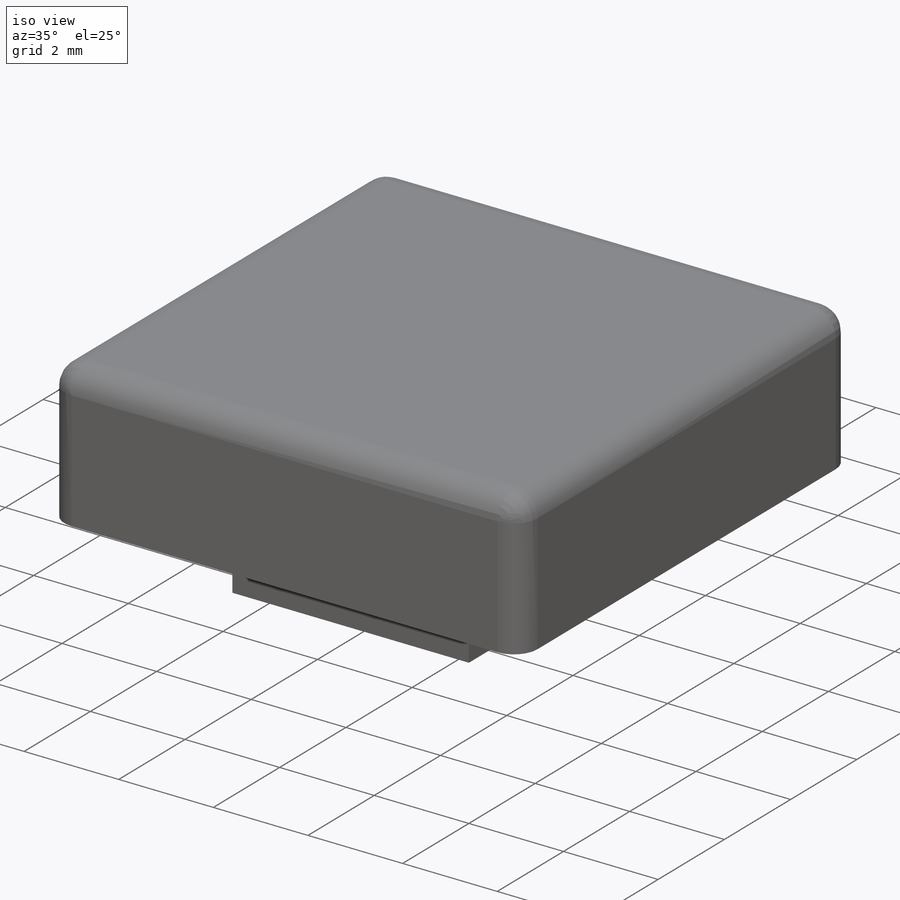
[diagram: iso view]
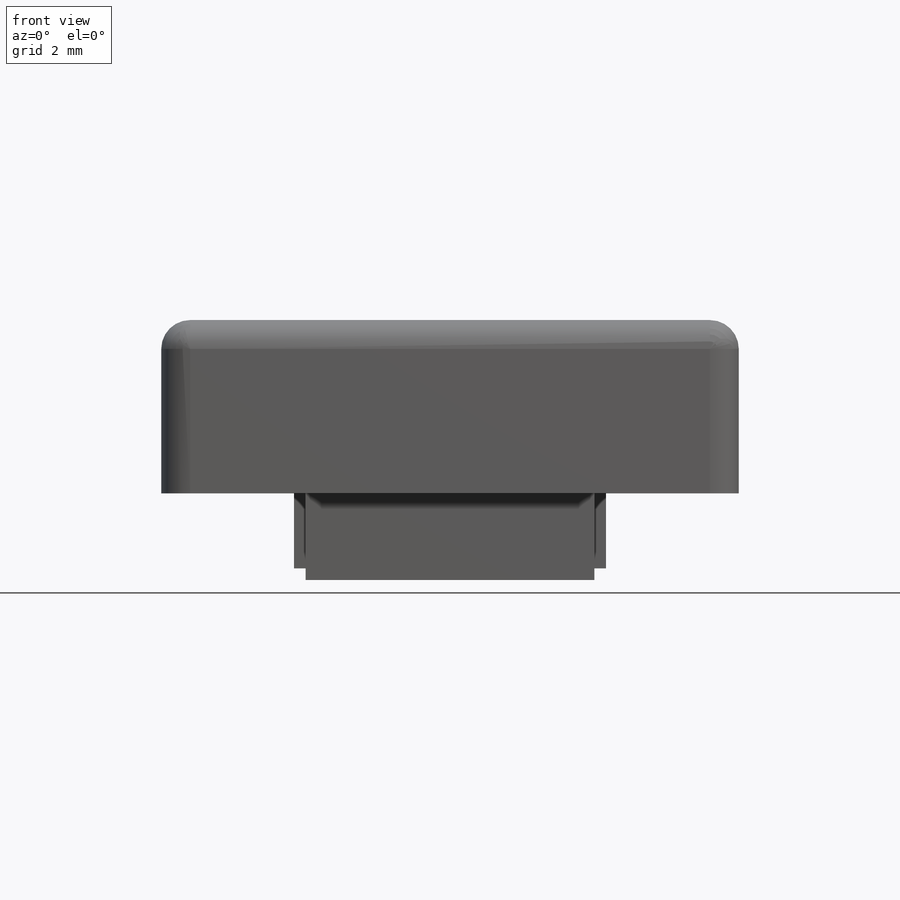
[diagram: front view]
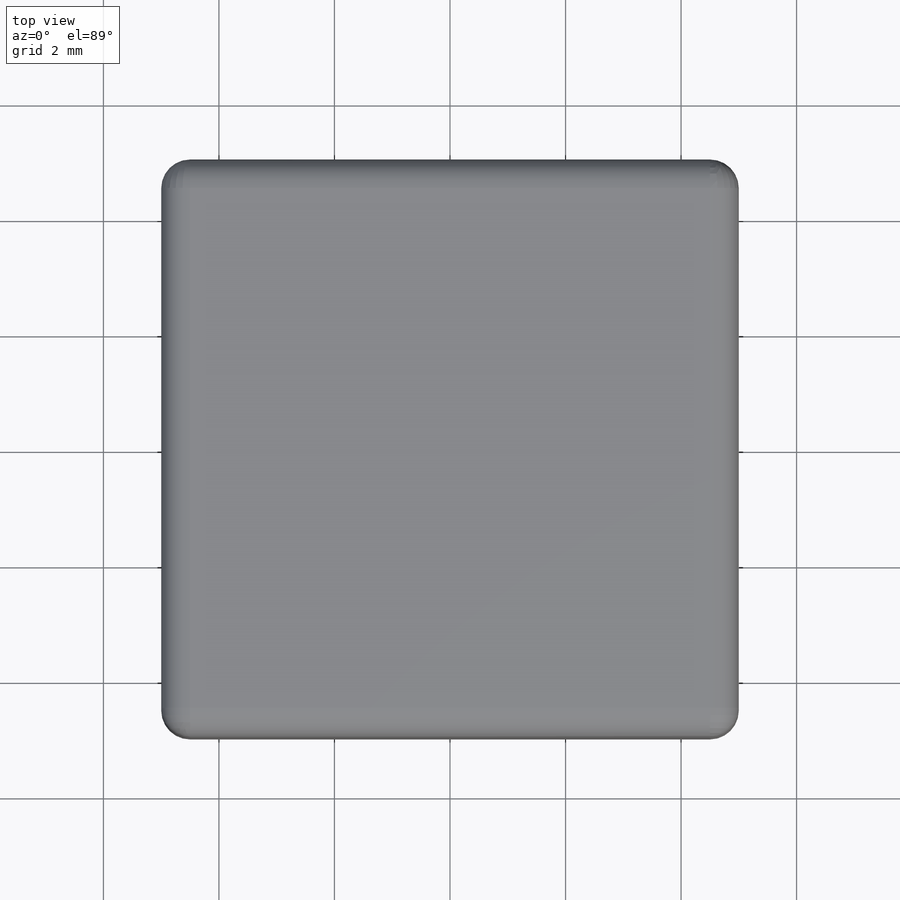
[diagram: top view]
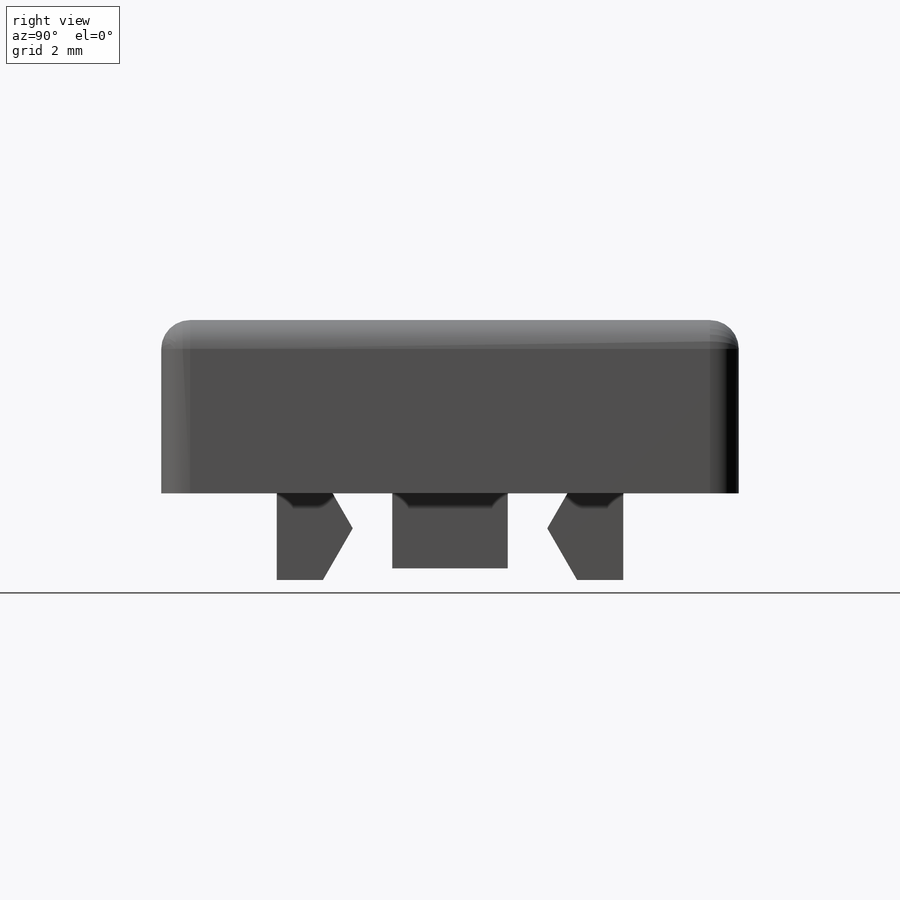
[diagram: right view]
SOLIDWORKS PART (.sldprt)
format: sldprt  version: not decoded by parser v0  size: 300,032 bytes
history: native  units: mm
features: sketch x5, extrude x5, material x1, shell x1, fillet x1 (+13 scaffold rows collapsed)
feature tree (26):
  scaffold x13  (default folders/planes/origin — collapsed)
  material  "Material <not specified>"
  sketch  "Sketch1"  dims[D1=10.0mm D2=10.0mm]
  extrude  "Boss-Extrude2"  Depth=3mm
  shell  "Shell2"  Thickness=0.7mm
  fillet  "Fillet2"  Radius=0.5mm
  sketch  "Sketch5"  dims[c1.D1=~0.509276mm c2.D1=~140.710593deg c3.D1=~0.467703mm c4.D1=~140.710593deg c5.D1=~0.509276mm c6.D1=~219.289407deg c7.D1=~0.467703mm c8.D1=150.0deg c8.D2=~0.358129mm c9.D2=150.0deg c9.D3=0.8mm c9.D4=1.5mm c9.D5=4.0mm]
  extrude  "Boss-Extrude3"  Depth=5mm
  sketch  "Sketch6"  dims[D1=0.8mm D2=1.8mm D3=3.8mm]
  extrude  "Boss-Extrude4"  Depth=2mm
  sketch  "Sketch7"  dims[D1=2.2mm]
  extrude  "Boss-Extrude5"  Depth=0.7mm
  sketch  "Sketch9"  dims[D1=2.2mm]
  extrude  "Boss-Extrude6"  Depth=0.7mm
decode coverage: 12 of 12 modeling features carry decoded parameters
note: ~ marks probable driven/reference dimensions
note: suppression state not decoded; provenance and decode notes live in map.json
